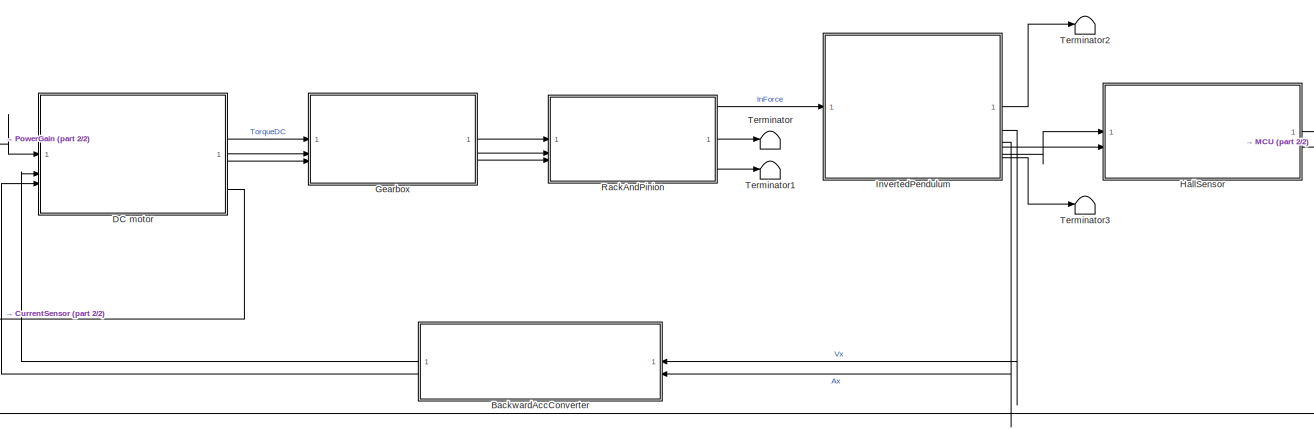
[diagram: root canvas - part 1/2, center side, full height]
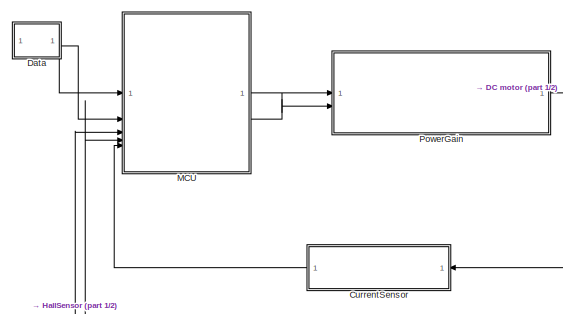
[diagram: root canvas - part 2/2, middle left region]
MODEL slx_46b804546f1c
KIND model
CONFIG AbsTol = auto
CONFIG EnableMultiTasking = off
CONFIG FixedStep = 0.001
CONFIG MaxStep = auto
CONFIG MinStep = auto
CONFIG RelTol = 1e-3
CONFIG SampleTimeConstraint = Unconstrained
CONFIG SolverName = ode1be
CONFIG StartTime = 0.0
CONFIG StopTime = 8
BLOCK [SubSystem] BackwardAccConverter
  NameLocation = top
  ReferencedSubsystem = BackwardAccConverter
BLOCK [SubSystem] CurrentSensor
  NameLocation = top
  ReferencedSubsystem = CurrentSensor
BLOCK [SubSystem] DC motor
  J_motor = J_motor
  L = L
  PortSchema = {"entries":[{"content":{"sides":[{"content":{"connectorIds":["In1","In2","In3"]},"type":"ConnectorPlacement.EquallySpacedRectSide","uuid":"9bed3017-c50e-477b-981e-f56b8e2e9074"},{"content":{"connectorIds":["Out1","Out3","Out2","Out4"],"side":"RIGHT"},"type":"ConnectorPlacement.EquallySpacedRectSide","uuid":"56040866-72b5-4c9e-836b-772424f49aa3"},{"content":{"side":"TOP"},"type":"ConnectorPlacement...<+255ch>
  R_dc = R_dc
  ReferencedSubsystem = DC_Motor
  km = km
  kw = kw
  vis_friction_coef_motor = vis_friction_coef_motor
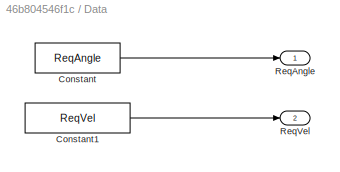
BLOCK [SubSystem] Data
BLOCK [Constant] Data/Constant
  Value = ReqAngle
BLOCK [Constant] Data/Constant1
  Value = ReqVel
BLOCK [Outport] Data/ReqAngle
BLOCK [Outport] Data/ReqVel
  Port = 2
BLOCK [SubSystem] Gearbox
  J_gear = J_gear
  ReferencedSubsystem = Gearbox
  i_gear = i_gear
  vis_friction_coef_gear = vis_friction_coef_gear
BLOCK [SubSystem] HallSensor
  PortSchema = {"entries":[{"content":{"sides":[{"content":{"connectorIds":["In2","In1"]},"type":"ConnectorPlacement.EquallySpacedRectSide","uuid":"805262f0-f66d-4bff-8129-d1c4f6a589e6"},{"content":{"connectorIds":["Out2","Out1"],"side":"RIGHT"},"type":"ConnectorPlacement.EquallySpacedRectSide","uuid":"52da77b4-8929-4305-bc58-d5bd9d089017"},{"content":{"side":"TOP"},"type":"ConnectorPlacement.EquallySpacedRectSi...<+235ch>
  ReferencedSubsystem = HallSensor
BLOCK [SubSystem] InvertedPendulum
  ReferencedSubsystem = InvertedPendulum
BLOCK [SubSystem] MCU
  ReferencedSubsystem = MCU
BLOCK [SubSystem] PowerGain
  ReferencedSubsystem = PowerGain
  gain_pw = gain_pw
BLOCK [SubSystem] RackAndPinion
  M = M
  ReferencedSubsystem = RackAndPinion
  i_rail = i_rail
  k_visco = k_visco
  m_pendulum = m
BLOCK [Terminator] Terminator
BLOCK [Terminator] Terminator1
BLOCK [Terminator] Terminator2
BLOCK [Terminator] Terminator3
LINE BackwardAccConverter:1 -> DC motor:2
LINE BackwardAccConverter:2 -> DC motor:3
LINE CurrentSensor:1 -> MCU:5
LINE DC motor:1 -> Gearbox:1
LINE DC motor:2 -> Gearbox:3
LINE DC motor:3 -> Gearbox:2
LINE DC motor:4 -> CurrentSensor:1
LINE Data/Constant1:1 -> Data/ReqVel:1
LINE Data/Constant:1 -> Data/ReqAngle:1
LINE Data:1 -> MCU:1
LINE Data:2 -> MCU:2
LINE Gearbox:1 -> RackAndPinion:1
LINE Gearbox:2 -> RackAndPinion:2
LINE Gearbox:3 -> RackAndPinion:3
LINE HallSensor:1 -> MCU:4
LINE HallSensor:2 -> MCU:3
LINE InvertedPendulum:1 -> Terminator2:1
LINE InvertedPendulum:2 -> BackwardAccConverter:1
LINE InvertedPendulum:3 -> BackwardAccConverter:2
LINE InvertedPendulum:4 -> HallSensor:2
LINE InvertedPendulum:5 -> HallSensor:1
LINE InvertedPendulum:6 -> Terminator3:1
LINE MCU:1 -> PowerGain:1
LINE MCU:2 -> PowerGain:2
LINE PowerGain:1 -> DC motor:1
LINE RackAndPinion:1 -> InvertedPendulum:1
LINE RackAndPinion:2 -> Terminator:1
LINE RackAndPinion:3 -> Terminator1:1
